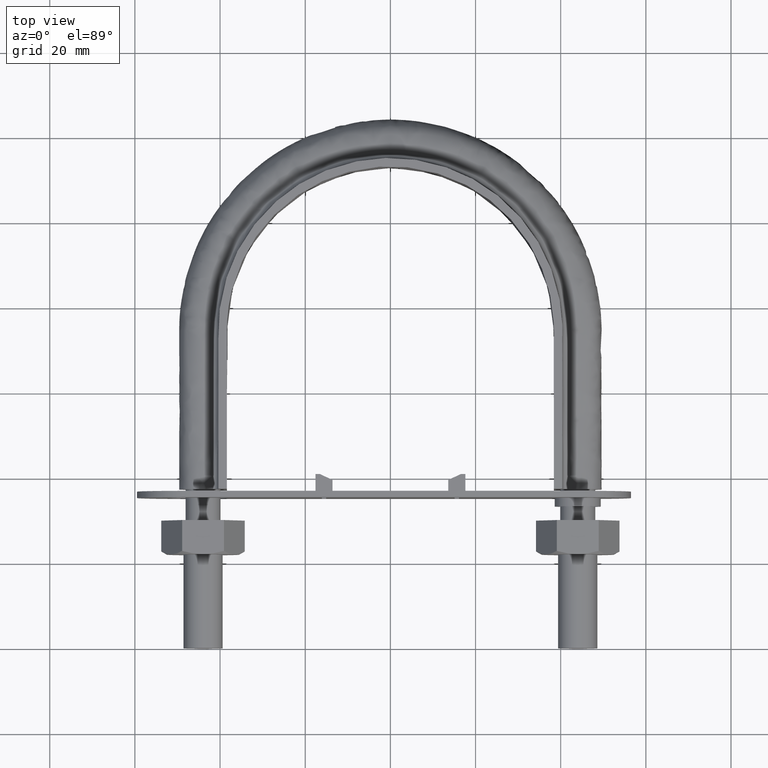
[diagram: clean part render]
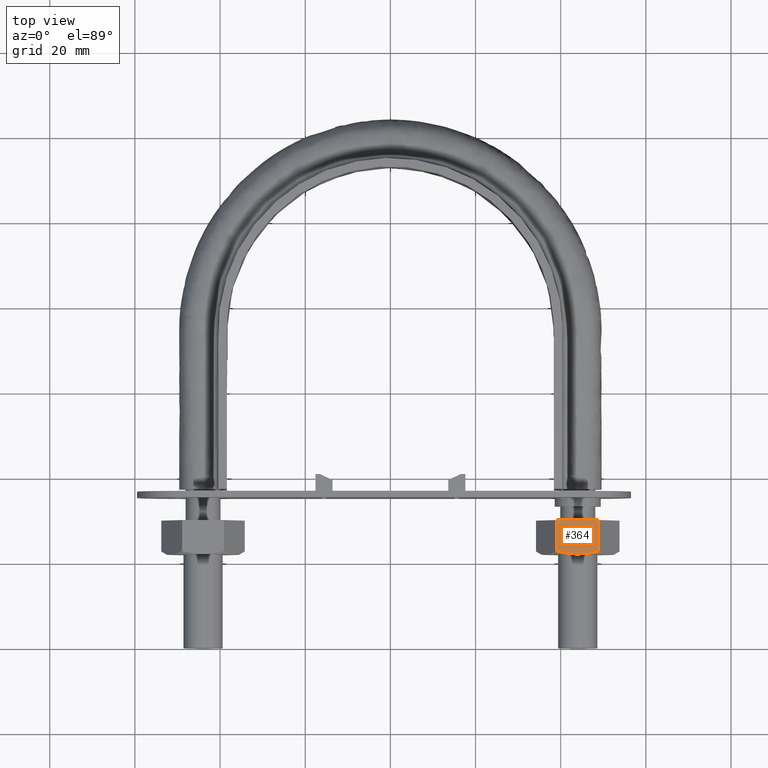
[diagram: same view with one face highlighted and labeled with its STEP entity id]
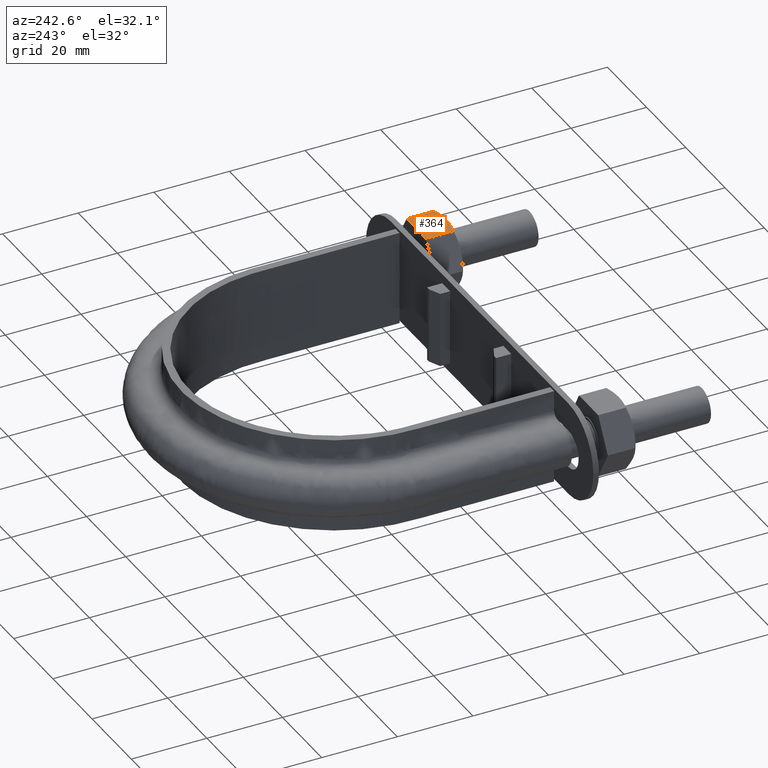
[diagram: same view with one face highlighted and labeled with its STEP entity id]
A machine part, top view. The second image highlights one B-rep face of the part: STEP entity #364.
A second angle (auxiliary view) of the same face is appended — the face is thin or edge-on in the first view.
In plain terms, the highlighted planar face has unit normal (-0, 0, -1).
Its self-contained STEP definition (entity closure, byte-faithful):
#364 = ADVANCED_FACE( '', ( #603 ), #604, .F. );
#603 = FACE_OUTER_BOUND( '', #1685, .T. );
#604 = PLANE( '', #1686 );
#1685 = EDGE_LOOP( '', ( #2434, #2435, #2436, #2437, #2438 ) );
#1686 = AXIS2_PLACEMENT_3D( '', #2439, #2440, #2441 );
#2434 = ORIENTED_EDGE( '', *, *, #2767, .F. );
#2435 = ORIENTED_EDGE( '', *, *, #2734, .F. );
#2436 = ORIENTED_EDGE( '', *, *, #2768, .F. );
#2437 = ORIENTED_EDGE( '', *, *, #2751, .F. );
#2438 = ORIENTED_EDGE( '', *, *, #2762, .F. );
#2439 = CARTESIAN_POINT( '', ( 39.0925227118919, 30.0000000000000, 8.50000000000122 ) );
#2440 = DIRECTION( '', ( -2.47579734491410E-013, 6.12303176911795E-017, -1.00000000000000 ) );
#2441 = DIRECTION( '', ( -2.44921270764475E-016, -1.00000000000000, -6.12303176911189E-017 ) );
#2734 = EDGE_CURVE( '', #3097, #3100, #3101, .T. );
#2751 = EDGE_CURVE( '', #3129, #3131, #3132, .T. );
#2762 = EDGE_CURVE( '', #3150, #3129, #3152, .T. );
#2767 = EDGE_CURVE( '', #3100, #3150, #3159, .T. );
#2768 = EDGE_CURVE( '', #3131, #3097, #3160, .F. );
#3097 = VERTEX_POINT( '', #3912 );
#3100 = VERTEX_POINT( '', #3915 );
#3101 = B_SPLINE_CURVE_WITH_KNOTS( '', 3, ( #3916, #3917, #3918, #3919, #3920, #3921 ), .UNSPECIFIED., .F., .F., ( 4, 2, 4 ), ( 0.0107224888714687, 0.0132032657403415, 0.0156840426092143 ), .UNSPECIFIED. );
#3129 = VERTEX_POINT( '', #3971 );
#3131 = VERTEX_POINT( '', #3973 );
#3132 = LINE( '', #3974, #3975 );
#3150 = VERTEX_POINT( '', #3997 );
#3152 = LINE( '', #3999, #4000 );
#3159 = B_SPLINE_CURVE_WITH_KNOTS( '', 3, ( #4020, #4021, #4022, #4023, #4024, #4025 ), .UNSPECIFIED., .F., .F., ( 4, 2, 4 ), ( 0.0156840426092143, 0.0181633795370664, 0.0206427164649185 ), .UNSPECIFIED. );
#3160 = LINE( '', #4026, #4027 );
#3912 = CARTESIAN_POINT( '', ( 48.8774993593034, 22.7505553499489, 8.49999999999880 ) );
#3915 = CARTESIAN_POINT( '', ( 44.0000000000021, 22.0000000000026, 8.50000000000000 ) );
#3916 = CARTESIAN_POINT( '', ( 48.8774993593033, 22.7505553499498, 8.49999999999879 ) );
#3917 = CARTESIAN_POINT( '', ( 48.0828739329417, 22.5222200930448, 8.49999999999899 ) );
#3918 = CARTESIAN_POINT( '', ( 47.2812026223248, 22.3336547117208, 8.49999999999919 ) );
#3919 = CARTESIAN_POINT( '', ( 45.6573811694475, 22.0721149177853, 8.49999999999959 ) );
#3920 = CARTESIAN_POINT( '', ( 44.8350787536132, 22.0000000000037, 8.49999999999979 ) );
#3921 = CARTESIAN_POINT( '', ( 44.0000000000019, 22.0000000000037, 8.50000000000000 ) );
#3971 = CARTESIAN_POINT( '', ( 39.1225006407008, 30.0000000000000, 8.50000000000121 ) );
#3973 = CARTESIAN_POINT( '', ( 48.8774993593034, 30.0000000000000, 8.49999999999880 ) );
#3974 = CARTESIAN_POINT( '', ( 34.2000000000053, 30.0000000000000, 8.50000000000243 ) );
#3975 = VECTOR( '', #4390, 999.999999999891 );
#3997 = CARTESIAN_POINT( '', ( 39.1225006407008, 22.7505553499489, 8.50000000000121 ) );
#3999 = CARTESIAN_POINT( '', ( 39.1225006407008, 30.0000000000000, 8.50000000000121 ) );
#4000 = VECTOR( '', #4413, 999.999999999891 );
#4020 = CARTESIAN_POINT( '', ( 44.0000000000019, 22.0000000000037, 8.50000000000000 ) );
#4021 = CARTESIAN_POINT( '', ( 43.1654059591304, 22.0000000000037, 8.50000000000021 ) );
#4022 = CARTESIAN_POINT( '', ( 42.3409017268013, 22.0723104611299, 8.50000000000042 ) );
#4023 = CARTESIAN_POINT( '', ( 40.7171925770438, 22.3339943747768, 8.50000000000081 ) );
#4024 = CARTESIAN_POINT( '', ( 39.9161421877764, 22.5225028103127, 8.50000000000101 ) );
#4025 = CARTESIAN_POINT( '', ( 39.1225006407010, 22.7505553499498, 8.50000000000121 ) );
#4026 = CARTESIAN_POINT( '', ( 48.8774993593034, 30.0000000000000, 8.49999999999880 ) );
#4027 = VECTOR( '', #4418, 999.999999999891 );
#4390 = DIRECTION( '', ( 1.00000000000000, -2.44921270764460E-016, -2.47579734491410E-013 ) );
#4413 = DIRECTION( '', ( 2.44921270764475E-016, 1.00000000000000, 6.12303176911189E-017 ) );
#4418 = DIRECTION( '', ( 2.44921270764475E-016, 1.00000000000000, 6.12303176911189E-017 ) );